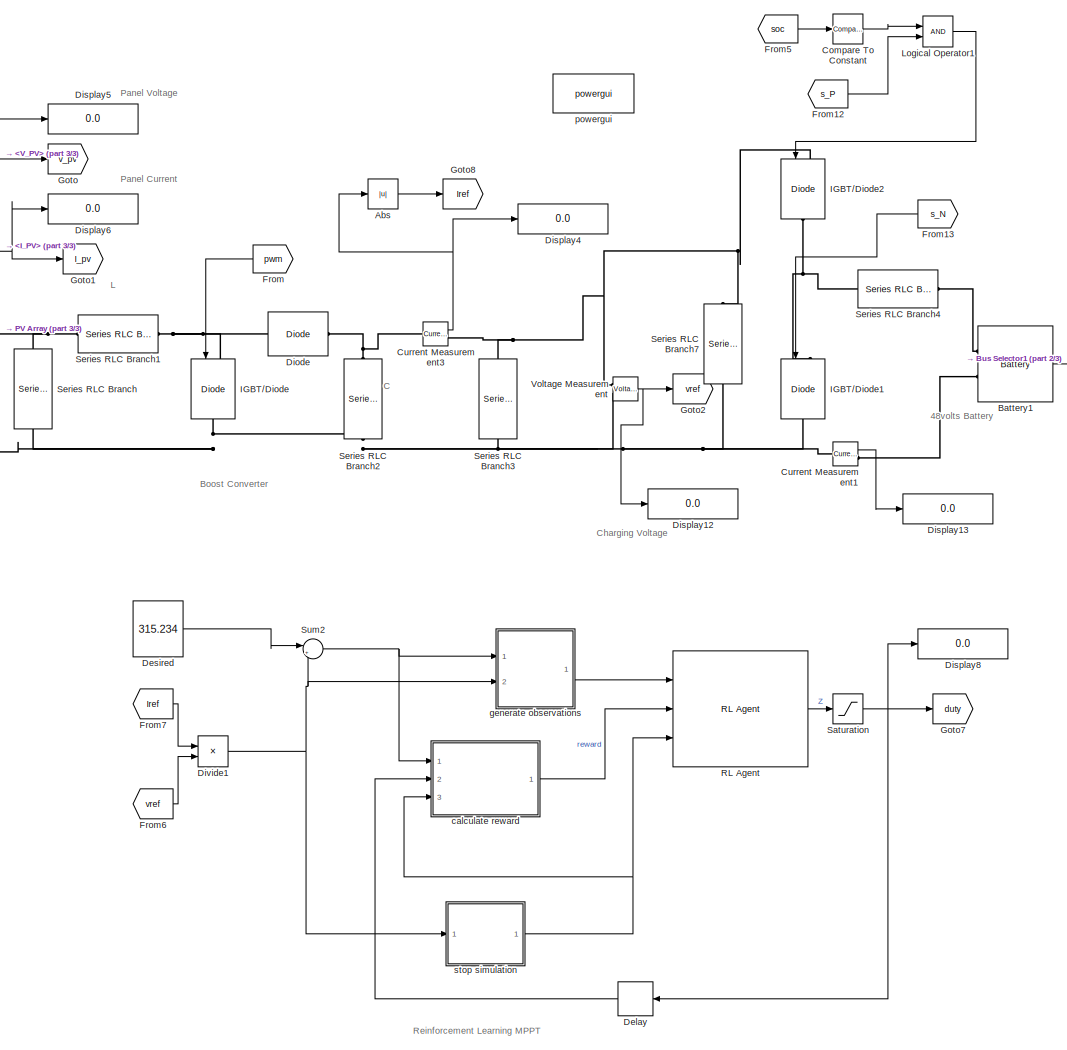
[diagram: root canvas - part 1/3, center side, full height]
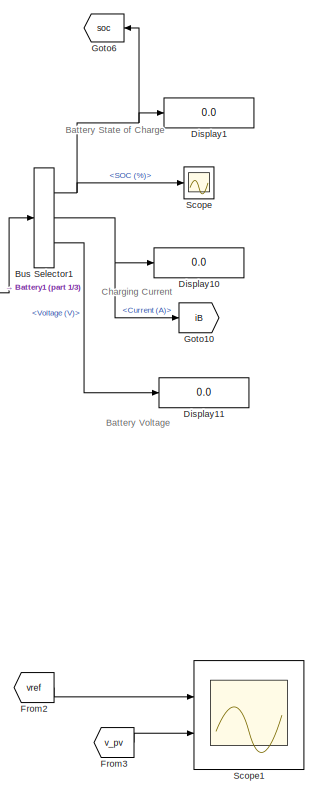
[diagram: root canvas - part 2/3, right side, full height]
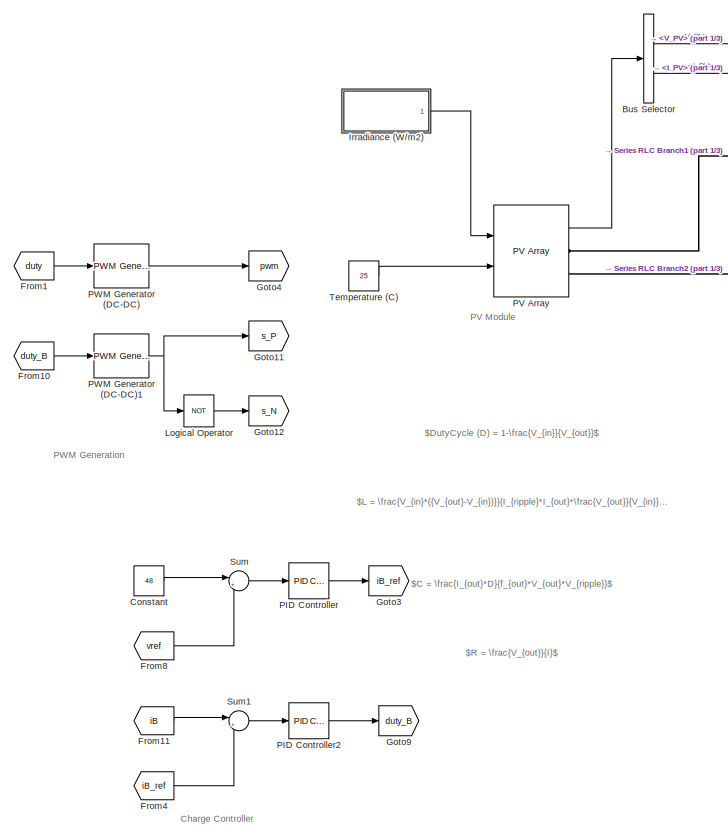
[diagram: root canvas - part 3/3, left side, full height]
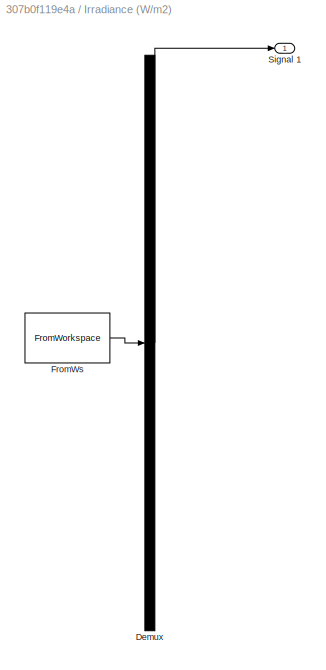
MODEL slx_307b0f119e4a
KIND model
CONFIG AbsTol = auto
CONFIG EnableMultiTasking = off
CONFIG FixedStep = 10e-6
CONFIG MaxStep = auto
CONFIG MinStep = auto
CONFIG RelTol = 1e-3
CONFIG SampleTimeConstraint = Unconstrained
CONFIG SolverName = VariableStepAuto
CONFIG StartTime = 0.0
CONFIG StopTime = 10
BLOCK [Abs] Abs
  SaturateOnIntegerOverflow = off
BLOCK [Reference] Battery1  REF=spsBatteryLib/Battery
  Ports = [0, 1, 0, 0, 0, 2]
  SourceBlock = spsBatteryLib/Battery
  SourceProductBaseCode = PS
  SourceType = Battery
BLOCK [BusSelector] Bus Selector
  OutputSignals = V_PV,I_PV
  Ports = [1, 2]
BLOCK [BusSelector] Bus Selector1
  OutputSignals = SOC (%),Current (A),Voltage (V)
  Ports = [1, 3]
BLOCK [Reference] Compare To Constant  REF=simulink/Logic and Bit
Operations/Compare
To Constant
  Ports = [1, 1]
  SourceBlock = simulink/Logic and Bit\nOperations/Compare\nTo Constant
  SourceProductBaseCode = SL
  SourceType = Compare To Constant
BLOCK [Constant] Constant
  Value = 48
BLOCK [Reference] Current Measurement1  REF=spsCurrentMeasurementLib/Current Measurement
  Ports = [0, 1, 0, 0, 0, 1, 1]
  SourceBlock = spsCurrentMeasurementLib/Current Measurement
  SourceProductBaseCode = PS
  SourceType = Current Measurement
  UserDataPersistent = on
BLOCK [Reference] Current Measurement3  REF=spsCurrentMeasurementLib/Current Measurement
  Ports = [0, 1, 0, 0, 0, 1, 1]
  SourceBlock = spsCurrentMeasurementLib/Current Measurement
  SourceProductBaseCode = PS
  SourceType = Current Measurement
  UserDataPersistent = on
BLOCK [Delay] Delay
  DelayLength = 1
  InputPortMap = u0
  Ports = [1, 1]
BLOCK [Constant] Desired
  Value = 315.234
BLOCK [Reference] Diode  REF=spsDiodeLib/Diode
  Ports = [0, 0, 0, 0, 0, 1, 1]
  SourceBlock = spsDiodeLib/Diode
  SourceProductBaseCode = PS
  SourceType = Diode
BLOCK [Display] Display1
  Decimation = 1
  Ports = [1]
BLOCK [Display] Display10
  Decimation = 1
  Ports = [1]
BLOCK [Display] Display11
  Decimation = 1
  Ports = [1]
BLOCK [Display] Display12
  Decimation = 1
  Ports = [1]
BLOCK [Display] Display13
  Decimation = 1
  Ports = [1]
BLOCK [Display] Display4
  Decimation = 1
  Ports = [1]
BLOCK [Display] Display5
  Decimation = 1
  NameLocation = top
  Ports = [1]
BLOCK [Display] Display6
  Decimation = 1
  NameLocation = top
  Ports = [1]
BLOCK [Display] Display8
  Decimation = 1
  Ports = [1]
BLOCK [Product] Divide1
  Inputs = **
  Ports = [2, 1]
BLOCK [From] From
  GotoTag = pwm
  NameLocation = top
BLOCK [From] From1
  GotoTag = duty
BLOCK [From] From10
  GotoTag = duty_B
BLOCK [From] From11
  GotoTag = iB
BLOCK [From] From12
  GotoTag = s_P
BLOCK [From] From13
  GotoTag = s_N
BLOCK [From] From2
  GotoTag = vref
BLOCK [From] From3
  GotoTag = v_pv
BLOCK [From] From4
  GotoTag = iB_ref
BLOCK [From] From5
  GotoTag = soc
BLOCK [From] From6
  GotoTag = vref
BLOCK [From] From7
  GotoTag = Iref
BLOCK [From] From8
  GotoTag = vref
BLOCK [Goto] Goto
  GotoTag = v_pv
BLOCK [Goto] Goto1
  GotoTag = I_pv
BLOCK [Goto] Goto10
  GotoTag = iB
BLOCK [Goto] Goto11
  GotoTag = s_P
BLOCK [Goto] Goto12
  GotoTag = s_N
BLOCK [Goto] Goto2
  GotoTag = vref
BLOCK [Goto] Goto3
  GotoTag = iB_ref
BLOCK [Goto] Goto4
  GotoTag = pwm
BLOCK [Goto] Goto6
  GotoTag = soc
BLOCK [Goto] Goto7
  GotoTag = duty
BLOCK [Goto] Goto8
  GotoTag = Iref
BLOCK [Goto] Goto9
  GotoTag = duty_B
BLOCK [Reference] IGBT//Diode  REF=spsIGBTDiodeLib/IGBT//Diode
  NameLocation = left
  Ports = [1, 0, 0, 0, 0, 1, 1]
  SourceBlock = spsIGBTDiodeLib/IGBT//Diode
  SourceProductBaseCode = PS
  SourceType = IGBT/Diode
BLOCK [Reference] IGBT//Diode1  REF=spsIGBTDiodeLib/IGBT//Diode
  NameLocation = left
  Ports = [1, 0, 0, 0, 0, 1, 1]
  SourceBlock = spsIGBTDiodeLib/IGBT//Diode
  SourceProductBaseCode = PS
  SourceType = IGBT/Diode
BLOCK [Reference] IGBT//Diode2  REF=spsIGBTDiodeLib/IGBT//Diode
  NameLocation = left
  Ports = [1, 0, 0, 0, 0, 1, 1]
  SourceBlock = spsIGBTDiodeLib/IGBT//Diode
  SourceProductBaseCode = PS
  SourceType = IGBT/Diode
BLOCK [SubSystem] Irradiance (W//m2)
  ClipboardFcn = sigbuilder_block('clipboard');
  CloseFcn = sigbuilder_block('close');
  ContinueFcn = sigbuilder_block('continue');
  CopyFcn = sigbuilder_block('copy');
  DeleteFcn = sigbuilder_block('delete');
  LoadFcn = sigbuilder_block('load');
  MaskHideContents = on
  ModelCloseFcn = sigbuilder_block('modelClose');
  NameChangeFcn = sigbuilder_block('namechange');
  OpenFcn = sigbuilder_block('open',[193.2 120.6 550.8 400.2 ]);
  PauseFcn = sigbuilder_block('pause');
  Ports = [0, 1]
  PreSaveFcn = sigbuilder_block('preSave');
  RequestExecContextInheritance = off
  StartFcn = sigbuilder_block('start');
  StopFcn = sigbuilder_block('stop');
  Tag = STV Subsys
BLOCK [Demux] Irradiance (W//m2)/Demux
  DisplayOption = none
  Outputs = 1
  Ports = [1, 1]
  Tag = STV Demux
BLOCK [FromWorkspace] Irradiance (W//m2)/FromWs
  Tag = STV FromWs
  VariableName = tuvar
BLOCK [Outport] Irradiance (W//m2)/Signal 1
  Tag = STV Outport
BLOCK [Logic] Logical Operator
  AllPortsSameDT = off
  Operator = NOT
  OutDataTypeStr = boolean
  Ports = [1, 1]
BLOCK [Logic] Logical Operator1
  AllPortsSameDT = off
  OutDataTypeStr = boolean
  Ports = [2, 1]
BLOCK [Reference] PID Controller  REF=pid_lib/PID Controller
  Ports = [1, 1]
  SourceBlock = pid_lib/PID Controller
  SourceProductBaseCode = SL
  SourceType = PID 1dof
BLOCK [Reference] PID Controller2  REF=pid_lib/PID Controller
  Ports = [1, 1]
  SourceBlock = pid_lib/PID Controller
  SourceProductBaseCode = SL
  SourceType = PID 1dof
BLOCK [Reference] PV Array  REF=spsPVArrayLib/PV Array
  Ports = [2, 1, 0, 0, 0, 0, 2]
  SourceBlock = spsPVArrayLib/PV Array
  SourceProductBaseCode = PS
  SourceType = PV array
BLOCK [Reference] PWM Generator (DC-DC)  REF=spsPWMGeneratorDCDCLib/PWM Generator
(DC-DC)
  Ports = [1, 1]
  SourceBlock = spsPWMGeneratorDCDCLib/PWM Generator\n(DC-DC)
  SourceProductBaseCode = PS
  SourceType = PWM Generator (DC-DC)
BLOCK [Reference] PWM Generator (DC-DC)1  REF=spsPWMGeneratorDCDCLib/PWM Generator
(DC-DC)
  Ports = [1, 1]
  SourceBlock = spsPWMGeneratorDCDCLib/PWM Generator\n(DC-DC)
  SourceProductBaseCode = PS
  SourceType = PWM Generator (DC-DC)
BLOCK [Reference] RL Agent  REF=rllib/RL Agent
  Ports = [3, 1]
  SourceBlock = rllib/RL Agent
  SourceProductBaseCode = RL
  SourceType = RL Agent
BLOCK [Saturate] Saturation
  LowerLimit = 0.3
  UpperLimit = 0.9
BLOCK [Scope] Scope
  Floating = off
  NumInputPorts = 1
  Ports = [1]
  ScopeSpecificationString = Simulink.scopes.TimeScopeBlockCfg('CurrentConfiguration', extmgr.ConfigurationSet(extmgr.Configuration('Core','General UI',true),extmgr.Configuration('Core','Source UI',true),extmgr.Configuration('Sources','WiredSimulink',true,'DataLoggingVariableName','ScopeData1'),extmgr.Configuration('Visuals','Time Domain',true,'SerializedDisplays',{struct('MinYLimReal','44.99831','MaxYLimReal','45.01446','YLa...<+1432ch>
BLOCK [Scope] Scope1
  Floating = off
  NumInputPorts = 2
  Ports = [2]
  ScopeSpecificationString = Simulink.scopes.TimeScopeBlockCfg('CurrentConfiguration', extmgr.ConfigurationSet(extmgr.Configuration('Core','General UI',true),extmgr.Configuration('Core','Source UI',true),extmgr.Configuration('Sources','WiredSimulink',true,'DataLoggingVariableName','ScopeData1'),extmgr.Configuration('Visuals','Time Domain',true,'SerializedDisplays',{struct('MinYLimReal','-13.25916','MaxYLimReal','119.35716','Y...<+2017ch>
BLOCK [Reference] Series RLC Branch  REF=spsSeriesRLCBranchLib/Series RLC Branch
  NameLocation = left
  Ports = [0, 0, 0, 0, 0, 1, 1]
  SourceBlock = spsSeriesRLCBranchLib/Series RLC Branch
  SourceProductBaseCode = PS
  SourceType = Series RLC Branch
BLOCK [Reference] Series RLC Branch1  REF=spsSeriesRLCBranchLib/Series RLC Branch
  Ports = [0, 0, 0, 0, 0, 1, 1]
  SourceBlock = spsSeriesRLCBranchLib/Series RLC Branch
  SourceProductBaseCode = PS
  SourceType = Series RLC Branch
BLOCK [Reference] Series RLC Branch2  REF=spsSeriesRLCBranchLib/Series RLC Branch
  NameLocation = left
  Ports = [0, 0, 0, 0, 0, 1, 1]
  SourceBlock = spsSeriesRLCBranchLib/Series RLC Branch
  SourceProductBaseCode = PS
  SourceType = Series RLC Branch
BLOCK [Reference] Series RLC Branch3  REF=spsSeriesRLCBranchLib/Series RLC Branch
  NameLocation = left
  Ports = [0, 0, 0, 0, 0, 1, 1]
  SourceBlock = spsSeriesRLCBranchLib/Series RLC Branch
  SourceProductBaseCode = PS
  SourceType = Series RLC Branch
BLOCK [Reference] Series RLC Branch4  REF=spsSeriesRLCBranchLib/Series RLC Branch
  NameLocation = top
  Ports = [0, 0, 0, 0, 0, 1, 1]
  SourceBlock = spsSeriesRLCBranchLib/Series RLC Branch
  SourceProductBaseCode = PS
  SourceType = Series RLC Branch
BLOCK [Reference] Series RLC Branch7  REF=spsSeriesRLCBranchLib/Series RLC Branch
  NameLocation = right
  Ports = [0, 0, 0, 0, 0, 1, 1]
  SourceBlock = spsSeriesRLCBranchLib/Series RLC Branch
  SourceProductBaseCode = PS
  SourceType = Series RLC Branch
BLOCK [Sum] Sum
  Inputs = |+-
  Ports = [2, 1]
BLOCK [Sum] Sum1
  Inputs = |+-
  Ports = [2, 1]
BLOCK [Sum] Sum2
  Inputs = |+-
  Ports = [2, 1]
BLOCK [Constant] Temperature (C)
  Value = 25
BLOCK [Reference] Voltage Measurement  REF=spsVoltageMeasurementLib/Voltage Measurement
  Ports = [0, 1, 0, 0, 0, 2]
  SourceBlock = spsVoltageMeasurementLib/Voltage Measurement
  SourceProductBaseCode = PS
  SourceType = Voltage Measurement
  UserDataPersistent = on
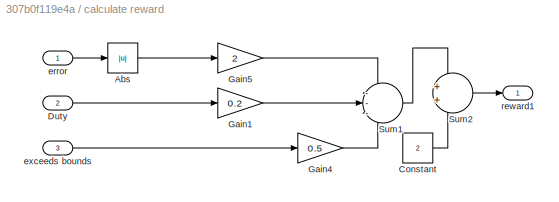
BLOCK [SubSystem] calculate reward
  Ports = [3, 1]
  RequestExecContextInheritance = off
BLOCK [Abs] calculate reward/Abs
  SaturateOnIntegerOverflow = off
BLOCK [Constant] calculate reward/Constant
  Value = 2
BLOCK [Inport] calculate reward/Duty
  Port = 2
BLOCK [Gain] calculate reward/Gain1
  Gain = 0.2
BLOCK [Gain] calculate reward/Gain4
  Gain = 0.5
BLOCK [Gain] calculate reward/Gain5
  Gain = 2
BLOCK [Sum] calculate reward/Sum1
  Inputs = ---
  OutDataTypeStr = double
  Ports = [3, 1]
BLOCK [Sum] calculate reward/Sum2
  OutDataTypeStr = double
  Ports = [2, 1]
BLOCK [Inport] calculate reward/error
BLOCK [Inport] calculate reward/exceeds bounds
  Port = 3
BLOCK [Outport] calculate reward/reward1
  VectorParamsAs1DForOutWhenUnconnected = off
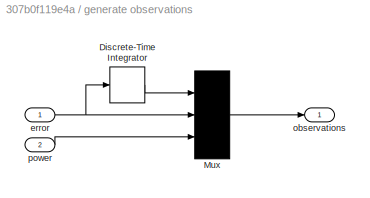
BLOCK [SubSystem] generate observations
  Ports = [2, 1]
  RequestExecContextInheritance = off
BLOCK [DiscreteIntegrator] generate observations/Discrete-Time Integrator
  ICPrevOutput = DiscIntNeverNeededParam
  ICPrevScaledInput = DiscIntNeverNeededParam
  InitialConditionSetting = Auto
  Ports = [1, 1]
  SampleTime = Ts
BLOCK [Mux] generate observations/Mux
  DisplayOption = bar
  Inputs = 3
  Ports = [3, 1]
BLOCK [Inport] generate observations/error
BLOCK [Outport] generate observations/observations
  VectorParamsAs1DForOutWhenUnconnected = off
BLOCK [Inport] generate observations/power
  Port = 2
BLOCK [Reference] powergui  REF=spspowerguiLib/powergui
  Ports = []
  Priority = 1
  SourceBlock = spspowerguiLib/powergui
  SourceProductBaseCode = PS
  SourceType = PSB option menu block
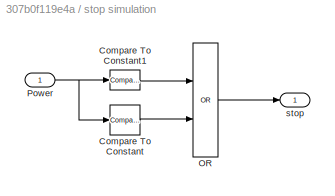
BLOCK [SubSystem] stop simulation
  Ports = [1, 1]
  RequestExecContextInheritance = off
BLOCK [Reference] stop simulation/Compare To Constant  REF=simulink/Logic and Bit
Operations/Compare
To Constant
  Ports = [1, 1]
  SourceBlock = simulink/Logic and Bit\nOperations/Compare\nTo Constant
  SourceProductBaseCode = SL
  SourceType = Compare To Constant
BLOCK [Reference] stop simulation/Compare To Constant1  REF=simulink/Logic and Bit
Operations/Compare
To Constant
  Ports = [1, 1]
  SourceBlock = simulink/Logic and Bit\nOperations/Compare\nTo Constant
  SourceProductBaseCode = SL
  SourceType = Compare To Constant
BLOCK [Logic] stop simulation/OR
  AllPortsSameDT = off
  IconShape = distinctive
  Operator = OR
  OutDataTypeStr = boolean
  Ports = [2, 1]
BLOCK [Inport] stop simulation/Power
BLOCK [Outport] stop simulation/stop
  VectorParamsAs1DForOutWhenUnconnected = off
ANNOTATION (root): Battery State of Charge
ANNOTATION (root): Battery Voltage
ANNOTATION (root): Charging Current
ANNOTATION (root): Charging Voltage
ANNOTATION (root): PV Module
ANNOTATION (root): Panel Current
ANNOTATION (root): Panel Voltage
ANNOTATION (root): Boost Converter
ANNOTATION (root): C
ANNOTATION (root): PWM Generation
ANNOTATION (root): 48volts Battery
ANNOTATION (root): Charge Controller
ANNOTATION (root): L
ANNOTATION (root): Reinforcement Learning MPPT
ANNOTATION (root): $R = \frac{V_{out}}{I}$
ANNOTATION (root): $C = \frac{I_{out}*D}{f_{out}*V_{out}*V_{ripple}}$
ANNOTATION (root): $DutyCycle (D) = 1-\frac{V_{in}}{V_{out}}$
ANNOTATION (root): $L = \frac{V_{in}*({V_{out}-V_{in})}}{I_{ripple}*I_{out}*\frac{V_{out}}{V_{in}}*f_{s}*V_{out}}$
LINE Abs:1 -> Goto8:1
LINE Battery1:1 -> Bus Selector1:1
NET Bus Selector1:1 -> Display1:1, Goto6:1, Scope:1
NET Bus Selector1:2 -> Display10:1, Goto10:1
LINE Bus Selector1:3 -> Display11:1
NET Bus Selector:1 -> Display5:1, Goto:1
NET Bus Selector:2 -> Display6:1, Goto1:1
LINE Compare To Constant:1 -> Logical Operator1:1
LINE Constant:1 -> Sum:1
LINE Current Measurement1:1 -> Display13:1
NET Current Measurement3:1 -> Abs:1, Display4:1
LINE Delay:1 -> calculate reward:2
LINE Desired:1 -> Sum2:1
NET Divide1:1 -> Sum2:2, generate observations:2, stop simulation:1
LINE From10:1 -> PWM Generator (DC-DC)1:1
LINE From11:1 -> Sum1:1
LINE From12:1 -> Logical Operator1:2
LINE From13:1 -> IGBT//Diode1:1
LINE From1:1 -> PWM Generator (DC-DC):1
LINE From2:1 -> Scope1:1
LINE From3:1 -> Scope1:2
LINE From4:1 -> Sum1:2
LINE From5:1 -> Compare To Constant:1
LINE From6:1 -> Divide1:2
LINE From7:1 -> Divide1:1
LINE From8:1 -> Sum:2
LINE From:1 -> IGBT//Diode:1
LINE Irradiance (W//m2):1 -> PV Array:1
LINE Logical Operator1:1 -> IGBT//Diode2:1
LINE Logical Operator:1 -> Goto12:1
LINE PID Controller2:1 -> Goto9:1
LINE PID Controller:1 -> Goto3:1
LINE PV Array:1 -> Bus Selector:1
NET PWM Generator (DC-DC)1:1 -> Goto11:1, Logical Operator:1
LINE PWM Generator (DC-DC):1 -> Goto4:1
LINE RL Agent:1 -> Saturation:1
NET Saturation:1 -> Delay:1, Display8:1, Goto7:1
LINE Sum1:1 -> PID Controller2:1
NET Sum2:1 -> calculate reward:1, generate observations:1
LINE Sum:1 -> PID Controller:1
LINE Temperature (C):1 -> PV Array:2
NET Voltage Measurement:1 -> Display12:1, Goto2:1
LINE calculate reward/Abs:1 -> calculate reward/Gain5:1
LINE calculate reward/Constant:1 -> calculate reward/Sum2:2
LINE calculate reward/Duty:1 -> calculate reward/Gain1:1
LINE calculate reward/Gain1:1 -> calculate reward/Sum1:2
LINE calculate reward/Gain4:1 -> calculate reward/Sum1:3
LINE calculate reward/Gain5:1 -> calculate reward/Sum1:1
LINE calculate reward/Sum1:1 -> calculate reward/Sum2:1
LINE calculate reward/Sum2:1 -> calculate reward/reward1:1
LINE calculate reward/error:1 -> calculate reward/Abs:1
LINE calculate reward/exceeds bounds:1 -> calculate reward/Gain4:1
LINE calculate reward:1 -> RL Agent:2
LINE generate observations/Discrete-Time Integrator:1 -> generate observations/Mux:1
LINE generate observations/Mux:1 -> generate observations/observations:1
NET generate observations/error:1 -> generate observations/Discrete-Time Integrator:1, generate observations/Mux:2
LINE generate observations/power:1 -> generate observations/Mux:3
LINE generate observations:1 -> RL Agent:1
LINE stop simulation/Compare To Constant1:1 -> stop simulation/OR:1
LINE stop simulation/Compare To Constant:1 -> stop simulation/OR:2
LINE stop simulation/OR:1 -> stop simulation/stop:1
NET stop simulation/Power:1 -> stop simulation/Compare To Constant1:1, stop simulation/Compare To Constant:1
NET stop simulation:1 -> RL Agent:3, calculate reward:3
PLINE Battery1:LConn1 -- Series RLC Branch4:LConn1
PLINE Battery1:LConn2 -- Current Measurement1:RConn1
PNET net1: Current Measurement1:LConn1 -- IGBT//Diode1:RConn1 -- IGBT//Diode:RConn1 -- PV Array:RConn2 -- Series RLC Branch2:RConn1 -- Series RLC Branch3:RConn1 -- Series RLC Branch7:LConn1 -- Series RLC Branch:RConn1 -- Voltage Measurement:LConn2
PNET net2: Current Measurement3:LConn1 -- Diode:RConn1 -- Series RLC Branch2:LConn1
PNET net3: Current Measurement3:RConn1 -- IGBT//Diode2:LConn1 -- Series RLC Branch3:LConn1 -- Series RLC Branch7:RConn1 -- Voltage Measurement:LConn1
PNET net4: Diode:LConn1 -- IGBT//Diode:LConn1 -- Series RLC Branch1:RConn1
PNET net5: IGBT//Diode1:LConn1 -- IGBT//Diode2:RConn1 -- Series RLC Branch4:RConn1
PNET net6: PV Array:RConn1 -- Series RLC Branch1:LConn1 -- Series RLC Branch:LConn1
note: NET lines group one-source signal fan-out (src -> all destinations, sorted); 1:1 wires keep LINE; PNET lines group multi-terminal physical nets as a canonical sorted terminal list (undirected conserving connections); 2-terminal nets keep the pairwise PLINE form
